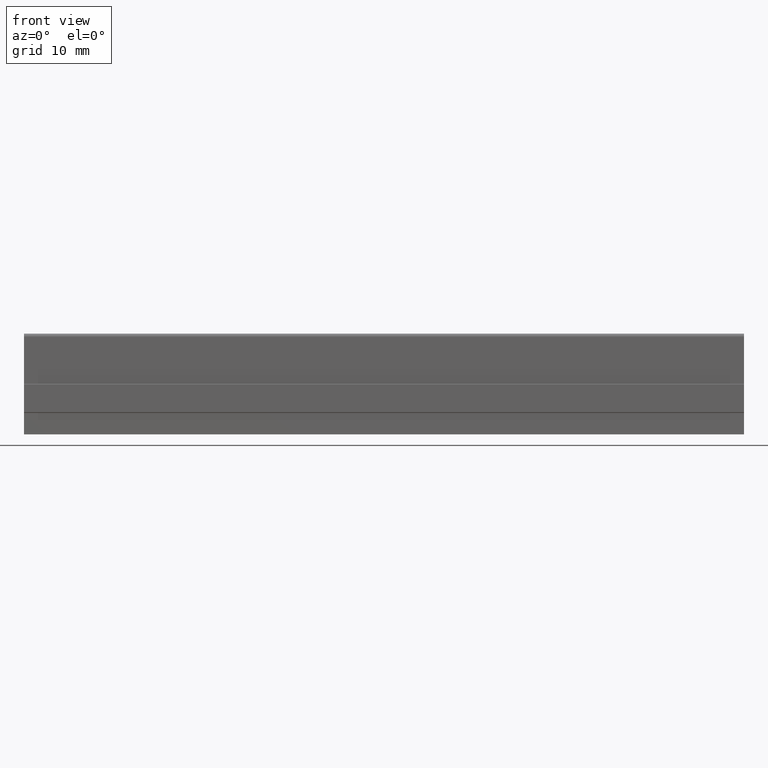
[diagram: clean part render]
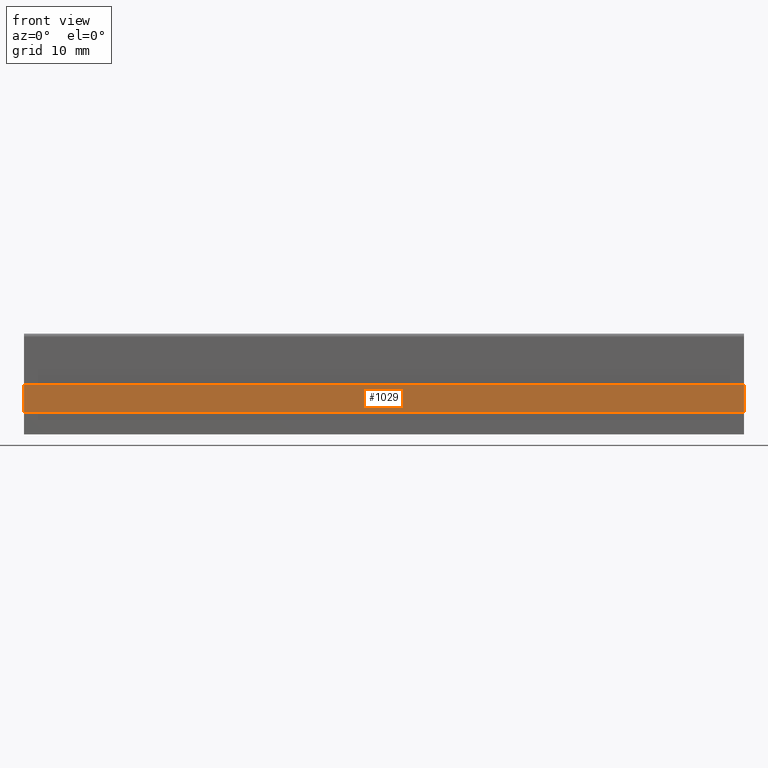
[diagram: same view with one face highlighted and labeled with its STEP entity id]
A machine part, front view. The second image highlights one B-rep face of the part: STEP entity #1029.
In plain terms, the highlighted planar face has unit normal (0, -0.9955, 0.0948).
Its self-contained STEP definition (entity closure, byte-faithful):
#296=CARTESIAN_POINT('',(100.0,-5.108722204531938,-6.275175223386277));
#297=VERTEX_POINT('',#296);
#305=CARTESIAN_POINT('',(100.0,-5.470884398009254,-10.077878254897996));
#306=VERTEX_POINT('',#305);
#307=CARTESIAN_POINT('',(100.0,-5.470884398009249,-10.077878254897996));
#308=DIRECTION('',(0.0,0.094809092627996,0.995495472593952));
#309=VECTOR('',#308,3.819909920436963);
#310=LINE('',#307,#309);
#311=EDGE_CURVE('',#306,#297,#310,.T.);
#888=CARTESIAN_POINT('',(0.0,-5.470884398009254,-10.077878254897998));
#889=VERTEX_POINT('',#888);
#897=CARTESIAN_POINT('',(0.0,-5.108722204531938,-6.275175223386279));
#898=VERTEX_POINT('',#897);
#899=CARTESIAN_POINT('',(0.0,-5.470884398009254,-10.077878254897998));
#900=DIRECTION('',(0.0,0.094809092627995,0.995495472593952));
#901=VECTOR('',#900,3.819909920436963);
#902=LINE('',#899,#901);
#903=EDGE_CURVE('',#889,#898,#902,.T.);
#1008=CARTESIAN_POINT('',(101.605560871440500,-5.480365362214407,-10.177428379052103));
#1009=DIRECTION('',(0.0,-0.995495472593952,0.094809092627996));
#1010=DIRECTION('',(0.0,0.094809092627996,0.995495472593952));
#1011=AXIS2_PLACEMENT_3D('',#1008,#1009,#1010);
#1012=PLANE('',#1011);
#1013=ORIENTED_EDGE('',*,*,#903,.F.);
#1014=CARTESIAN_POINT('',(-1.421085E-014,-5.470884398009254,-10.077878254897998));
#1015=DIRECTION('',(1.0,0.0,0.0));
#1016=VECTOR('',#1015,100.000000000000010);
#1017=LINE('',#1014,#1016);
#1018=EDGE_CURVE('',#889,#306,#1017,.T.);
#1019=ORIENTED_EDGE('',*,*,#1018,.T.);
#1020=ORIENTED_EDGE('',*,*,#311,.T.);
#1021=CARTESIAN_POINT('',(100.0,-5.108722204531938,-6.275175223386281));
#1022=DIRECTION('',(-1.0,0.0,0.0));
#1023=VECTOR('',#1022,100.0);
#1024=LINE('',#1021,#1023);
#1025=EDGE_CURVE('',#297,#898,#1024,.T.);
#1026=ORIENTED_EDGE('',*,*,#1025,.T.);
#1027=EDGE_LOOP('',(#1013,#1019,#1020,#1026));
#1028=FACE_OUTER_BOUND('',#1027,.T.);
#1029=ADVANCED_FACE('',(#1028),#1012,.T.);